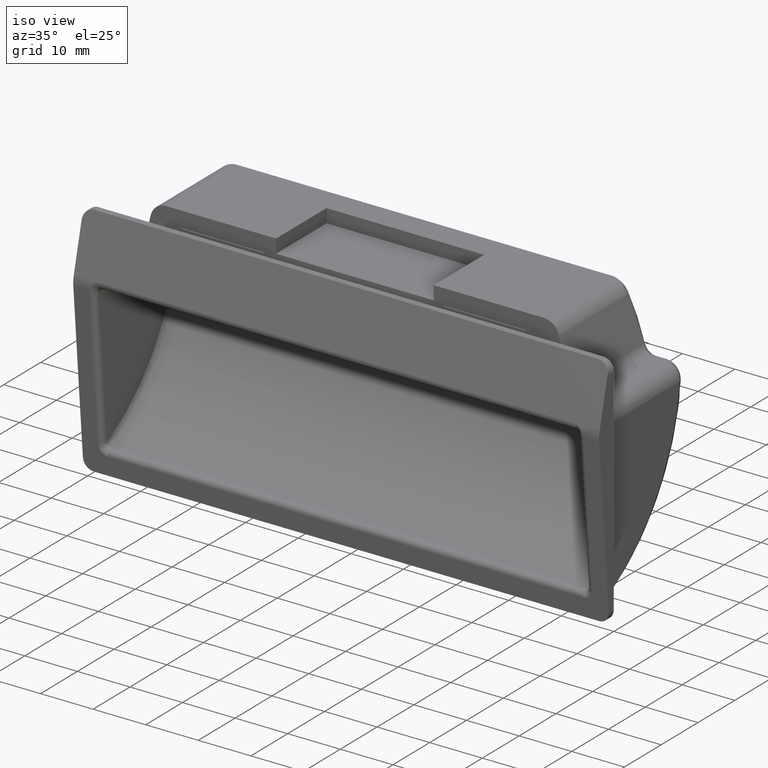
[diagram: clean part render]
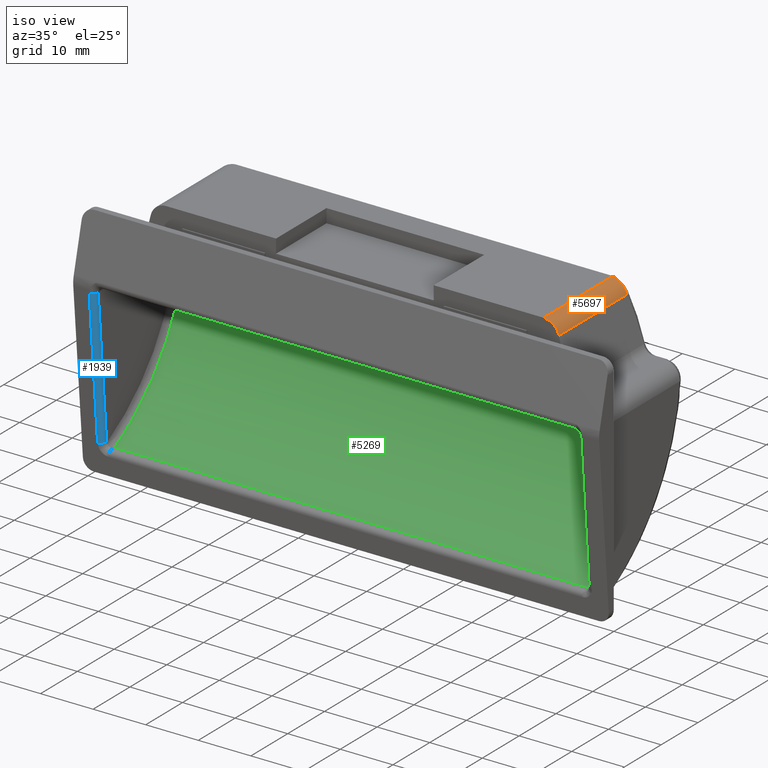
[diagram: same view with three faces highlighted in distinct colors, each labeled with its STEP entity id]
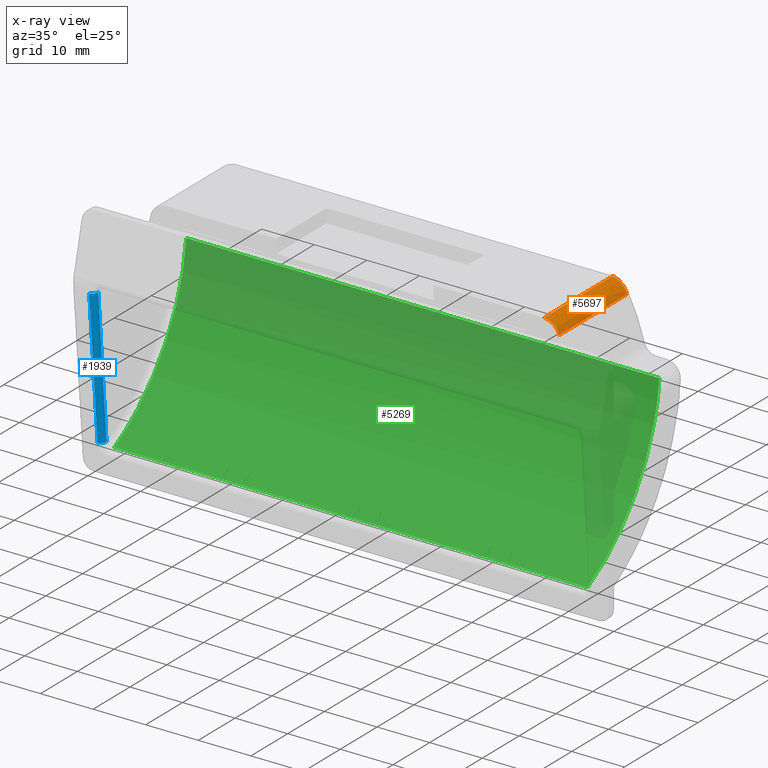
[diagram: x-ray of the same camera — body ghosted, the three highlighted faces saturated]
A machine part, iso view with three faces highlighted in distinct colors.
The next image is the same camera in x-ray (body ghosted, the three faces saturated) — at least one of them is partly hidden behind the body in this view.
Their STEP definitions:

[orange] entity #5697 — the highlighted face is a freeform B-spline surface patch.
#1502=CARTESIAN_POINT('',(38.808722864421803,19.651020783917350,22.484391787801400));
#1503=VERTEX_POINT('',#1502);
#1659=CARTESIAN_POINT('',(35.899999999999999,19.893540093386449,24.750000000000000));
#1660=VERTEX_POINT('',#1659);
#1677=CARTESIAN_POINT('',(38.808722864421803,19.651020783917350,22.484391787801400));
#1678=CARTESIAN_POINT('',(38.789410564159397,19.638454756821730,22.554629930828391));
#1679=CARTESIAN_POINT('',(38.750065448508863,19.612853881596269,22.697726704539239));
#1680=CARTESIAN_POINT('',(38.669043978054148,19.584758173161529,22.911588349524589));
#1681=CARTESIAN_POINT('',(38.568895539028240,19.563176927994039,23.127292940828941));
#1682=CARTESIAN_POINT('',(38.446678700251702,19.548985422966510,23.342321942416302));
#1683=CARTESIAN_POINT('',(38.301640628712839,19.541938850288538,23.554136962958250));
#1684=CARTESIAN_POINT('',(38.132734922151784,19.542085617233131,23.759806766986859));
#1685=CARTESIAN_POINT('',(37.939369902291801,19.549487222188709,23.956159123211808));
#1686=CARTESIAN_POINT('',(37.666885577466338,19.567412674224411,24.185536706209682));
#1687=CARTESIAN_POINT('',(37.302786274197672,19.604533487863488,24.417927091724309));
#1688=CARTESIAN_POINT('',(36.844624774201179,19.674547412731560,24.610584858304211));
#1689=CARTESIAN_POINT('',(36.372071704110247,19.767658241743199,24.728758671583400));
#1690=CARTESIAN_POINT('',(36.056705175569981,19.851753353170430,24.742948897233440));
#1691=CARTESIAN_POINT('',(35.899999999999999,19.893540093386449,24.750000000000000));
#1692=B_SPLINE_CURVE_WITH_KNOTS('',3,(#1677,#1678,#1679,#1680,#1681,#1682,#1683,#1684,#1685,#1686,#1687,#1688,#1689,#1690,#1691),.UNSPECIFIED.,.F.,.U.,(4,1,1,1,1,1,1,1,1,1,1,1,4),(0.0,0.055334977745694,0.112734426730947,0.172273402632777,0.234019137737138,0.298031889675528,0.364365716455875,0.433069175552164,0.504185948865926,0.631132664525066,0.755847489411964,0.878680967778516,1.0),.UNSPECIFIED.);
#1693=EDGE_CURVE('',#1503,#1660,#1692,.T.);
#5621=CARTESIAN_POINT('',(35.812595078673169,20.363378595721120,24.747771581322461));
#5622=CARTESIAN_POINT('',(35.812562172756117,17.072551418952091,24.749079776776910));
#5623=CARTESIAN_POINT('',(35.812584494359548,10.490897188198510,24.748423671596498));
#5624=CARTESIAN_POINT('',(35.812578003231280,3.909242957444929,24.748787950905768));
#5625=CARTESIAN_POINT('',(35.812579018837262,0.618415903460369,24.748723335197781));
#5626=CARTESIAN_POINT('',(36.052087378914848,20.363378595721109,24.753978132023029));
#5627=CARTESIAN_POINT('',(36.052189771930102,17.072551418952091,24.757146241292020));
#5628=CARTESIAN_POINT('',(36.052124237646318,10.490897188198510,24.755100178754951));
#5629=CARTESIAN_POINT('',(36.052146941884750,3.909242957444929,24.755832731269440));
#5630=CARTESIAN_POINT('',(36.052142931381461,0.618415903460369,24.755706825543871));
#5631=CARTESIAN_POINT('',(36.529348210039103,20.363378595721109,24.710629770920349));
#5632=CARTESIAN_POINT('',(36.529567589127083,17.072551418952081,24.714455729598431));
#5633=CARTESIAN_POINT('',(36.529420218616337,10.490897188198501,24.711561990940641));
#5634=CARTESIAN_POINT('',(36.529464466639219,3.909242957444929,24.712291072419550));
#5635=CARTESIAN_POINT('',(36.529456841551053,0.618415903460369,24.712168915737589));
#5636=CARTESIAN_POINT('',(36.983172249232162,20.363378595721109,24.557139536796068));
#5637=CARTESIAN_POINT('',(36.983322486605552,17.072551418952081,24.560055098774740));
#5638=CARTESIAN_POINT('',(36.983212984254791,10.490897188198501,24.557544308823140));
#5639=CARTESIAN_POINT('',(36.983233813829322,3.909242957444929,24.557907946193801));
#5640=CARTESIAN_POINT('',(36.983230166979602,0.618415903460368,24.557851235228121));
#5641=CARTESIAN_POINT('',(37.631283206891382,20.363378595721109,24.246175797502421));
#5642=CARTESIAN_POINT('',(37.631374193157761,17.072551418952081,24.248691772692482));
#5643=CARTESIAN_POINT('',(37.631301716112098,10.490897188198501,24.246374904833271));
#5644=CARTESIAN_POINT('',(37.631300058370527,3.909242957444929,24.246469055509589));
#5645=CARTESIAN_POINT('',(37.631300572937157,0.618415903460369,24.246464272561649));
#5646=CARTESIAN_POINT('',(38.007317038749427,20.363378595721109,23.938247693943229));
#5647=CARTESIAN_POINT('',(38.007366997189337,17.072551418952081,23.940251556108858));
#5648=CARTESIAN_POINT('',(38.007326711853871,10.490897188198501,23.938426629166180));
#5649=CARTESIAN_POINT('',(38.007312583265943,3.909242957444929,23.938340063550822));
#5650=CARTESIAN_POINT('',(38.007315491545533,0.618415903460369,23.938368950041109));
#5651=CARTESIAN_POINT('',(38.576942850037277,20.363378595721109,23.182596168707779));
#5652=CARTESIAN_POINT('',(38.576920610396890,17.072551418952081,23.183544391156769));
#5653=CARTESIAN_POINT('',(38.576931680560051,10.490897188198501,23.182716432983572));
#5654=CARTESIAN_POINT('',(38.576907804421239,3.909242957444929,23.182535275864929));
#5655=CARTESIAN_POINT('',(38.576912384883890,0.618415903460369,23.182575264517610));
#5656=CARTESIAN_POINT('',(38.766978422053462,20.363378595721120,22.749266316939242));
#5657=CARTESIAN_POINT('',(38.766932218255022,17.072551418952081,22.749623057584792));
#5658=CARTESIAN_POINT('',(38.766958038579972,10.490897188198510,22.749325179628411));
#5659=CARTESIAN_POINT('',(38.766938565710213,3.909242957444929,22.749212917122641));
#5660=CARTESIAN_POINT('',(38.766942142830672,0.618415903460369,22.749233358319181));
#5661=CARTESIAN_POINT('',(38.850973465669867,20.363378595721120,22.290066631849822));
#5662=CARTESIAN_POINT('',(38.850965590091683,17.072551418952081,22.289896604498100));
#5663=CARTESIAN_POINT('',(38.850970850714191,10.490897188198510,22.290063243425791));
#5664=CARTESIAN_POINT('',(38.850974792373911,3.909242957444928,22.290165202176109));
#5665=CARTESIAN_POINT('',(38.850973308884939,0.618415903460369,22.290133988358662));
#5666=B_SPLINE_SURFACE_WITH_KNOTS('',3,3,((#5621,#5626,#5631,#5636,#5641,#5646,#5651,#5656,#5661),(#5622,#5627,#5632,#5637,#5642,#5647,#5652,#5657,#5662),(#5623,#5628,#5633,#5638,#5643,#5648,#5653,#5658,#5663),(#5624,#5629,#5634,#5639,#5644,#5649,#5654,#5659,#5664),(#5625,#5630,#5635,#5640,#5645,#5650,#5655,#5660,#5665)),.UNSPECIFIED.,.F.,.F.,.U.,(4,1,4),(4,1,2,2,4),(0.0,9.872481530307070,19.744962692260739),(0.0,0.500000000000000,1.0,2.0,2.974406939135119),.UNSPECIFIED.);
#5667=CARTESIAN_POINT('',(38.808722864421803,1.100000000000000,22.484391787801400));
#5668=VERTEX_POINT('',#5667);
#5669=CARTESIAN_POINT('',(38.808722864421803,19.651020783917350,22.484391787801400));
#5670=CARTESIAN_POINT('',(38.808722864421803,1.100000000000000,22.484391787801400));
#5671=QUASI_UNIFORM_CURVE('',1,(#5669,#5670),.UNSPECIFIED.,.F.,.U.);
#5672=EDGE_CURVE('',#1503,#5668,#5671,.T.);
#5673=ORIENTED_EDGE('',*,*,#5672,.F.);
#5674=ORIENTED_EDGE('',*,*,#1693,.T.);
#5675=CARTESIAN_POINT('',(35.899999999999999,1.100000000000000,24.750000000000000));
#5676=VERTEX_POINT('',#5675);
#5677=CARTESIAN_POINT('',(35.899999999999999,19.893540093386449,24.750000000000000));
#5678=CARTESIAN_POINT('',(35.899999999999999,1.100000000000000,24.750000000000000));
#5679=QUASI_UNIFORM_CURVE('',1,(#5677,#5678),.UNSPECIFIED.,.F.,.U.);
#5680=EDGE_CURVE('',#1660,#5676,#5679,.T.);
#5681=ORIENTED_EDGE('',*,*,#5680,.T.);
#5682=CARTESIAN_POINT('',(38.808722864421753,1.100000000000000,22.484391787801389));
#5683=CARTESIAN_POINT('',(38.236704097778322,1.100000000000000,24.749999999999996));
#5684=CARTESIAN_POINT('',(35.899999999999999,1.100000000000000,24.750000000000000));
#5692=(BOUNDED_CURVE()B_SPLINE_CURVE(2,(#5682,#5683,#5684),.UNSPECIFIED.,.F.,.U.)CURVE()GEOMETRIC_REPRESENTATION_ITEM()QUASI_UNIFORM_CURVE()RATIONAL_B_SPLINE_CURVE((1.0,0.788922449484252,1.0))REPRESENTATION_ITEM(''));
#5693=EDGE_CURVE('',#5668,#5676,#5692,.T.);
#5694=ORIENTED_EDGE('',*,*,#5693,.F.);
#5695=EDGE_LOOP('',(#5673,#5674,#5681,#5694));
#5696=FACE_OUTER_BOUND('',#5695,.T.);
#5697=ADVANCED_FACE('',(#5696),#5666,.T.);

[blue] entity #1939 — the highlighted face is a freeform B-spline surface patch.
#1849=CARTESIAN_POINT('',(-46.0,-0.666059978278147,-17.750000000000000));
#1850=VERTEX_POINT('',#1849);
#1864=CARTESIAN_POINT('',(-47.0,-1.662433225174075,-17.835090263074399));
#1865=VERTEX_POINT('',#1864);
#1866=CARTESIAN_POINT('',(-46.0,-0.666059978278147,-17.750000000000000));
#1867=CARTESIAN_POINT('',(-46.000000000000007,-1.662433225174075,-17.835090263074378));
#1868=CARTESIAN_POINT('',(-47.0,-1.662433225174074,-17.835090263074392));
#1876=(BOUNDED_CURVE()B_SPLINE_CURVE(2,(#1866,#1867,#1868),.UNSPECIFIED.,.F.,.U.)CURVE()GEOMETRIC_REPRESENTATION_ITEM()QUASI_UNIFORM_CURVE()RATIONAL_B_SPLINE_CURVE((1.0,0.707106781186548,1.0))REPRESENTATION_ITEM(''));
#1877=EDGE_CURVE('',#1850,#1865,#1876,.T.);
#1895=CARTESIAN_POINT('',(-47.026176948307892,-3.981768960071629,9.327438895233376));
#1896=CARTESIAN_POINT('',(-47.026176948307892,-1.604099863769230,-18.514123604766411));
#1897=CARTESIAN_POINT('',(-45.935242411405888,-4.010232480378374,9.325008110947984));
#1898=CARTESIAN_POINT('',(-45.935242411405888,-1.632563384075975,-18.516554389051795));
#1899=CARTESIAN_POINT('',(-46.001865201578127,-2.924910013847843,9.417694636289090));
#1900=CARTESIAN_POINT('',(-46.001865201578127,-0.547240917545437,-18.423867863710690));
#1908=(BOUNDED_SURFACE()B_SPLINE_SURFACE(1,2,((#1895,#1897,#1899),(#1896,#1898,#1900)),.UNSPECIFIED.,.F.,.F.,.U.)B_SPLINE_SURFACE_WITH_KNOTS((2,2),(3,3),(0.0,27.942904515688880),(0.0,1.0),.UNSPECIFIED.)GEOMETRIC_REPRESENTATION_ITEM()RATIONAL_B_SPLINE_SURFACE(((1.0,0.675590207615660,1.0),(1.0,0.675590207615660,1.0)))REPRESENTATION_ITEM('')SURFACE());
#1909=CARTESIAN_POINT('',(-46.0,-2.929159653521355,8.749999999999799));
#1910=VERTEX_POINT('',#1909);
#1911=CARTESIAN_POINT('',(-47.0,-3.925532900417285,8.664909736925420));
#1912=VERTEX_POINT('',#1911);
#1913=CARTESIAN_POINT('',(-46.0,-2.929159653521355,8.749999999999799));
#1914=CARTESIAN_POINT('',(-46.000000000000007,-3.925532900417283,8.664909736925415));
#1915=CARTESIAN_POINT('',(-47.0,-3.925532900417282,8.664909736925415));
#1923=(BOUNDED_CURVE()B_SPLINE_CURVE(2,(#1913,#1914,#1915),.UNSPECIFIED.,.F.,.U.)CURVE()GEOMETRIC_REPRESENTATION_ITEM()QUASI_UNIFORM_CURVE()RATIONAL_B_SPLINE_CURVE((1.0,0.707106781186548,1.0))REPRESENTATION_ITEM(''));
#1924=EDGE_CURVE('',#1910,#1912,#1923,.T.);
#1925=ORIENTED_EDGE('',*,*,#1924,.T.);
#1926=CARTESIAN_POINT('',(-47.0,-1.662433225174075,-17.835090263074399));
#1927=CARTESIAN_POINT('',(-47.0,-3.925532900417285,8.664909736925420));
#1928=QUASI_UNIFORM_CURVE('',1,(#1926,#1927),.UNSPECIFIED.,.F.,.U.);
#1929=EDGE_CURVE('',#1865,#1912,#1928,.T.);
#1930=ORIENTED_EDGE('',*,*,#1929,.F.);
#1931=ORIENTED_EDGE('',*,*,#1877,.F.);
#1932=CARTESIAN_POINT('',(-46.0,-2.929159653521355,8.749999999999799));
#1933=CARTESIAN_POINT('',(-46.0,-0.666059978278147,-17.750000000000000));
#1934=QUASI_UNIFORM_CURVE('',1,(#1932,#1933),.UNSPECIFIED.,.F.,.U.);
#1935=EDGE_CURVE('',#1910,#1850,#1934,.T.);
#1936=ORIENTED_EDGE('',*,*,#1935,.F.);
#1937=EDGE_LOOP('',(#1925,#1930,#1931,#1936));
#1938=FACE_OUTER_BOUND('',#1937,.T.);
#1939=ADVANCED_FACE('',(#1938),#1908,.T.);

[green] entity #5269 — the highlighted face is a freeform B-spline surface patch.
#1715=CARTESIAN_POINT('',(-45.0,19.566908556321302,9.746262201421359));
#1716=VERTEX_POINT('',#1715);
#1730=CARTESIAN_POINT('',(45.0,19.566908556321302,9.746262201421359));
#1731=VERTEX_POINT('',#1730);
#1732=CARTESIAN_POINT('',(45.0,19.566908556321302,9.746262201421359));
#1733=CARTESIAN_POINT('',(-45.0,19.566908556321302,9.746262201421359));
#1734=QUASI_UNIFORM_CURVE('',1,(#1732,#1733),.UNSPECIFIED.,.F.,.U.);
#1735=EDGE_CURVE('',#1731,#1716,#1734,.T.);
#3048=CARTESIAN_POINT('',(-45.0,0.021423845621049,-18.739081731160649));
#3049=VERTEX_POINT('',#3048);
#3057=CARTESIAN_POINT('',(-45.0,19.566908556321369,9.746262201421351));
#3058=CARTESIAN_POINT('',(-45.0,17.533680307125486,-9.806949633656693));
#3059=CARTESIAN_POINT('',(-45.0,0.021423845621076,-18.739081731160699));
#3067=(BOUNDED_CURVE()B_SPLINE_CURVE(2,(#3057,#3058,#3059),.UNSPECIFIED.,.F.,.U.)CURVE()GEOMETRIC_REPRESENTATION_ITEM()QUASI_UNIFORM_CURVE()RATIONAL_B_SPLINE_CURVE((1.0,0.878652163657204,1.0))REPRESENTATION_ITEM(''));
#3068=EDGE_CURVE('',#1716,#3049,#3067,.T.);
#3237=CARTESIAN_POINT('',(45.0,0.021423845621049,-18.739081731160649));
#3238=VERTEX_POINT('',#3237);
#3239=CARTESIAN_POINT('',(45.0,0.021423845621066,-18.739081731160699));
#3240=CARTESIAN_POINT('',(45.0,17.533680307125483,-9.806949633656693));
#3241=CARTESIAN_POINT('',(45.0,19.566908556321369,9.746262201421343));
#3249=(BOUNDED_CURVE()B_SPLINE_CURVE(2,(#3239,#3240,#3241),.UNSPECIFIED.,.F.,.U.)CURVE()GEOMETRIC_REPRESENTATION_ITEM()QUASI_UNIFORM_CURVE()RATIONAL_B_SPLINE_CURVE((1.0,0.878652163657204,1.0))REPRESENTATION_ITEM(''));
#3250=EDGE_CURVE('',#3238,#1731,#3249,.T.);
#5245=CARTESIAN_POINT('',(-47.250000000000007,19.694362157224770,11.294415929107929));
#5246=CARTESIAN_POINT('',(47.306250000000013,19.694362157224770,11.294415929107929));
#5247=CARTESIAN_POINT('',(-47.250000000000014,18.370404711199928,-10.501107698786246));
#5248=CARTESIAN_POINT('',(47.306250000000006,18.370404711199928,-10.501107698786246));
#5249=CARTESIAN_POINT('',(-47.250000000000007,-1.531495176061703,-19.485098705593501));
#5250=CARTESIAN_POINT('',(47.306250000000013,-1.531495176061703,-19.485098705593501));
#5258=(BOUNDED_SURFACE()B_SPLINE_SURFACE(1,2,((#5245,#5247,#5249),(#5246,#5248,#5250)),.UNSPECIFIED.,.F.,.F.,.U.)B_SPLINE_SURFACE_WITH_KNOTS((2,2),(3,3),(0.0,94.556250000000020),(0.0,40.286376894428152),.UNSPECIFIED.)GEOMETRIC_REPRESENTATION_ITEM()RATIONAL_B_SPLINE_SURFACE(((1.0,0.852461009383624,0.991430488901427),(1.0,0.852461009383624,0.991430488901427)))REPRESENTATION_ITEM('')SURFACE());
#5259=ORIENTED_EDGE('',*,*,#3250,.T.);
#5260=ORIENTED_EDGE('',*,*,#1735,.T.);
#5261=ORIENTED_EDGE('',*,*,#3068,.T.);
#5262=CARTESIAN_POINT('',(-45.0,0.021423845621049,-18.739081731160649));
#5263=CARTESIAN_POINT('',(45.0,0.021423845621049,-18.739081731160649));
#5264=QUASI_UNIFORM_CURVE('',1,(#5262,#5263),.UNSPECIFIED.,.F.,.U.);
#5265=EDGE_CURVE('',#3049,#3238,#5264,.T.);
#5266=ORIENTED_EDGE('',*,*,#5265,.T.);
#5267=EDGE_LOOP('',(#5259,#5260,#5261,#5266));
#5268=FACE_OUTER_BOUND('',#5267,.T.);
#5269=ADVANCED_FACE('',(#5268),#5258,.F.);